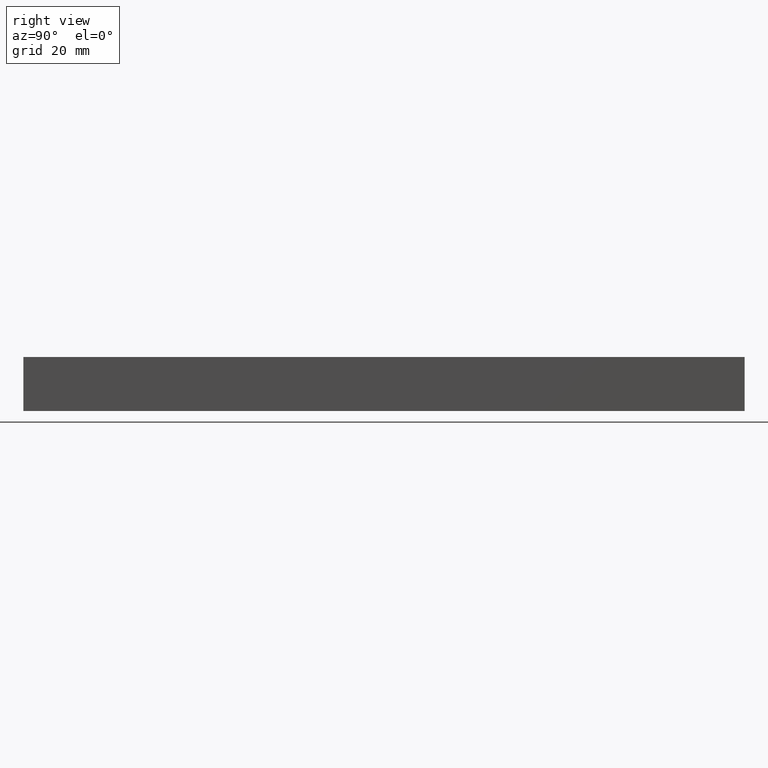
[diagram: clean part render]
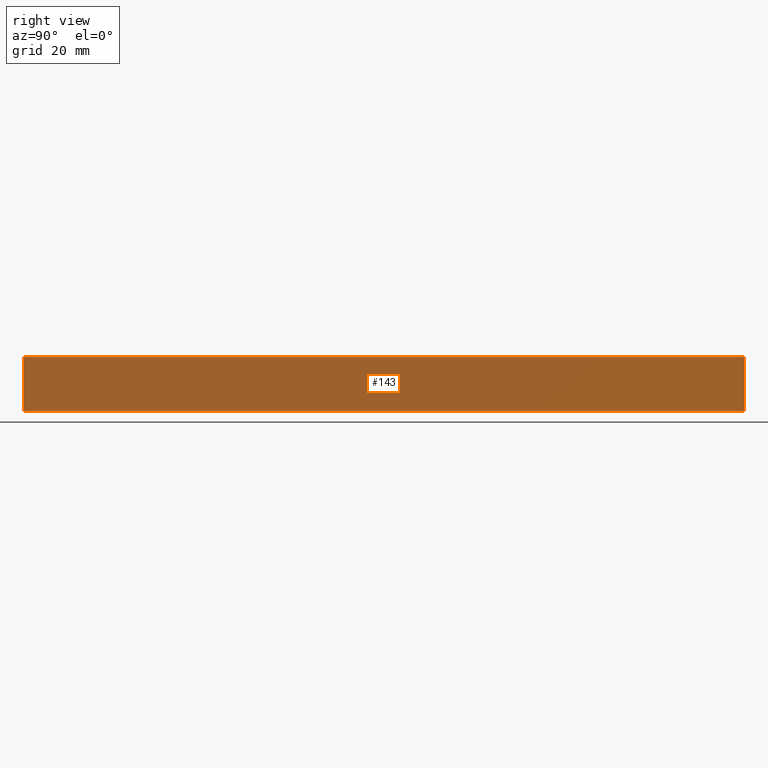
[diagram: same view with one face highlighted and labeled with its STEP entity id]
A machine part, right view. The second image highlights one B-rep face of the part: STEP entity #143.
In plain terms, the highlighted planar face has unit normal (1, 0, 0).
Its self-contained STEP definition (entity closure, byte-faithful):
#7 = CARTESIAN_POINT ( 'NONE',  ( 30.00000000000000000, 200.0000000000000000, -4.999999999999999100 ) ) ;
#10 = ORIENTED_EDGE ( 'NONE', *, *, #93, .F. ) ;
#20 = CARTESIAN_POINT ( 'NONE',  ( 30.00000000000000000, 200.0000000000000000, 10.00000000000000000 ) ) ;
#27 = LINE ( 'NONE', #46, #148 ) ;
#31 = FACE_OUTER_BOUND ( 'NONE', #58, .T. ) ;
#34 = DIRECTION ( 'NONE',  ( 0.0000000000000000000, 0.0000000000000000000, -1.000000000000000000 ) ) ;
#43 = VECTOR ( 'NONE', #236, 1000.000000000000000 ) ;
#46 = CARTESIAN_POINT ( 'NONE',  ( 30.00000000000000000, 0.0000000000000000000, -4.999999999999999100 ) ) ;
#49 = DIRECTION ( 'NONE',  ( 0.0000000000000000000, 1.000000000000000000, 0.0000000000000000000 ) ) ;
#50 = ORIENTED_EDGE ( 'NONE', *, *, #227, .F. ) ;
#58 = EDGE_LOOP ( 'NONE', ( #50, #10, #98, #146 ) ) ;
#61 = LINE ( 'NONE', #182, #43 ) ;
#69 = EDGE_CURVE ( 'NONE', #90, #141, #112, .T. ) ;
#90 = VERTEX_POINT ( 'NONE', #7 ) ;
#93 = EDGE_CURVE ( 'NONE', #153, #213, #27, .T. ) ;
#98 = ORIENTED_EDGE ( 'NONE', *, *, #233, .T. ) ;
#101 = CARTESIAN_POINT ( 'NONE',  ( 30.00000000000000000, 0.0000000000000000000, 10.00000000000000000 ) ) ;
#112 = LINE ( 'NONE', #238, #119 ) ;
#119 = VECTOR ( 'NONE', #138, 1000.000000000000000 ) ;
#126 = VECTOR ( 'NONE', #49, 1000.000000000000000 ) ;
#135 = CARTESIAN_POINT ( 'NONE',  ( 30.00000000000000000, 0.0000000000000000000, 10.00000000000000000 ) ) ;
#138 = DIRECTION ( 'NONE',  ( 0.0000000000000000000, 0.0000000000000000000, 1.000000000000000000 ) ) ;
#141 = VERTEX_POINT ( 'NONE', #20 ) ;
#143 = ADVANCED_FACE ( 'NONE', ( #31 ), #188, .T. ) ;
#146 = ORIENTED_EDGE ( 'NONE', *, *, #69, .T. ) ;
#148 = VECTOR ( 'NONE', #237, 1000.000000000000000 ) ;
#153 = VERTEX_POINT ( 'NONE', #226 ) ;
#166 = DIRECTION ( 'NONE',  ( 1.000000000000000000, 0.0000000000000000000, 0.0000000000000000000 ) ) ;
#167 = LINE ( 'NONE', #135, #126 ) ;
#182 = CARTESIAN_POINT ( 'NONE',  ( 30.00000000000000000, 0.0000000000000000000, -4.999999999999999100 ) ) ;
#188 = PLANE ( 'NONE',  #192 ) ;
#192 = AXIS2_PLACEMENT_3D ( 'NONE', #218, #166, #34 ) ;
#213 = VERTEX_POINT ( 'NONE', #101 ) ;
#218 = CARTESIAN_POINT ( 'NONE',  ( 30.00000000000000000, 0.0000000000000000000, -4.999999999999999100 ) ) ;
#226 = CARTESIAN_POINT ( 'NONE',  ( 30.00000000000000000, 0.0000000000000000000, -4.999999999999999100 ) ) ;
#227 = EDGE_CURVE ( 'NONE', #213, #141, #167, .T. ) ;
#233 = EDGE_CURVE ( 'NONE', #153, #90, #61, .T. ) ;
#236 = DIRECTION ( 'NONE',  ( 0.0000000000000000000, 1.000000000000000000, 0.0000000000000000000 ) ) ;
#237 = DIRECTION ( 'NONE',  ( 0.0000000000000000000, 0.0000000000000000000, 1.000000000000000000 ) ) ;
#238 = CARTESIAN_POINT ( 'NONE',  ( 30.00000000000000000, 200.0000000000000000, -4.999999999999999100 ) ) ;